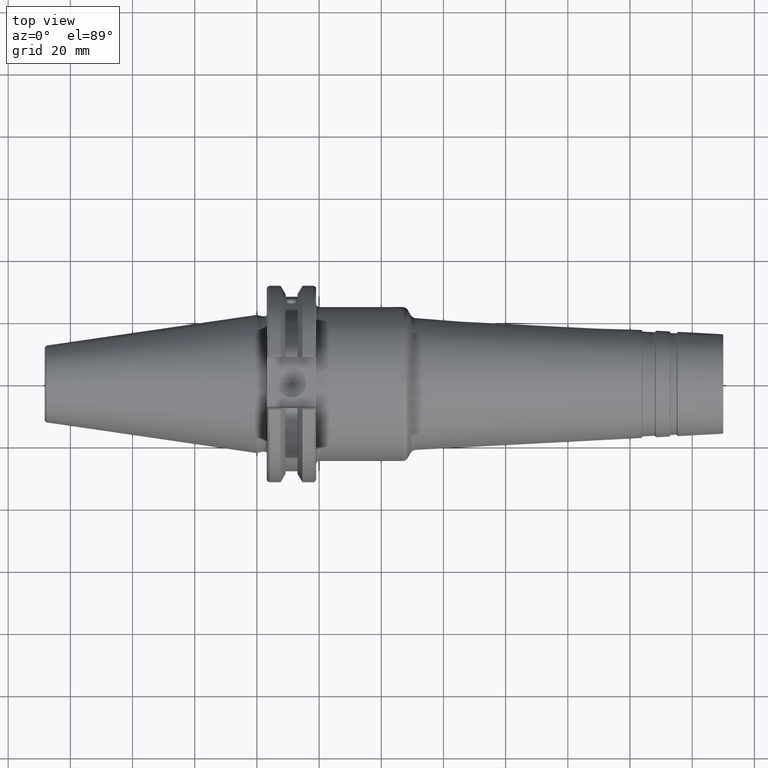
[diagram: clean part render]
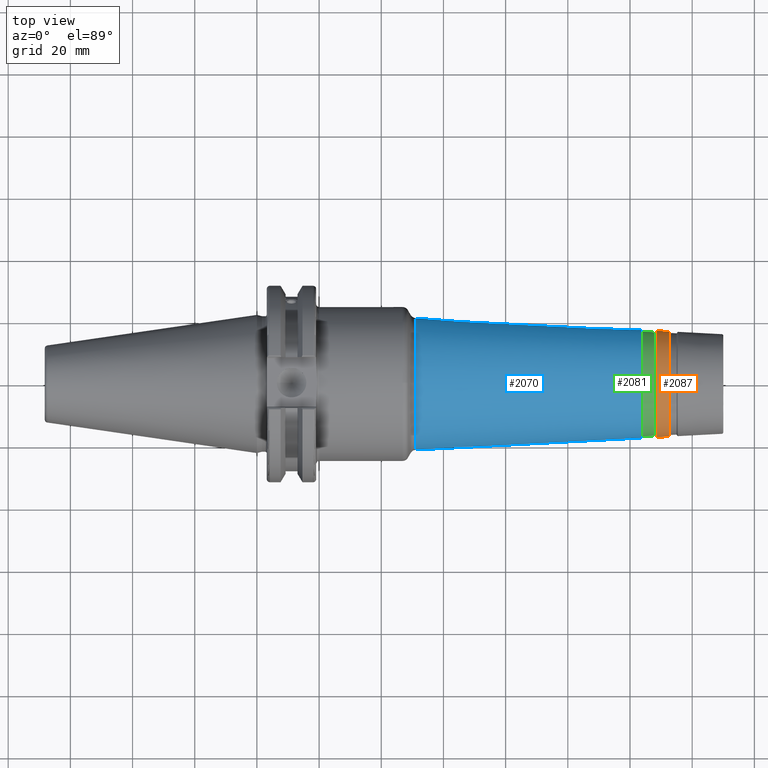
[diagram: same view with three faces highlighted in distinct colors, each labeled with its STEP entity id]
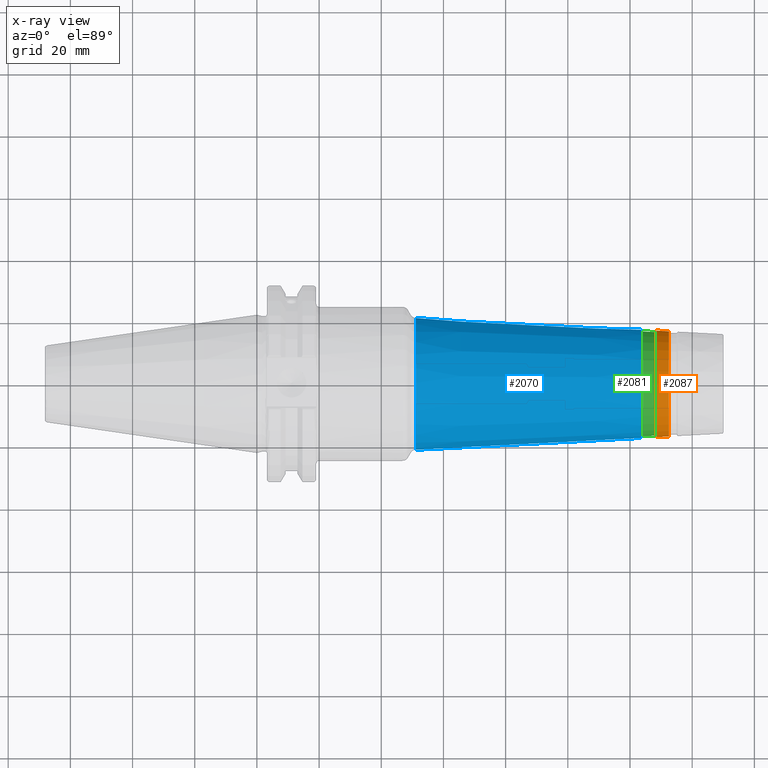
[diagram: x-ray of the same camera — body ghosted, the three highlighted faces saturated]
A machine part, top view with three faces highlighted in distinct colors.
The next image is the same camera in x-ray (body ghosted, the three faces saturated) — at least one of them is partly hidden behind the body in this view.
Their STEP definitions:

[orange] entity #2087 — the highlighted conical surface has half-angle 3 deg.
#206=FACE_OUTER_BOUND('',#315,.T.);
#315=EDGE_LOOP('',(#1541,#1542,#1543,#1544,#1545,#1546,#1547,#1548));
#424=LINE('',#3476,#523);
#523=VECTOR('',#2719,17.0202570867172);
#687=CIRCLE('',#2293,16.9166117566925);
#688=CIRCLE('',#2294,16.9166117566925);
#689=CIRCLE('',#2295,16.9166117566925);
#690=CIRCLE('',#2297,17.1239024167419);
#691=CIRCLE('',#2298,17.1239024167419);
#692=CIRCLE('',#2299,17.1239024167419);
#857=VERTEX_POINT('',#3467);
#858=VERTEX_POINT('',#3469);
#859=VERTEX_POINT('',#3471);
#860=VERTEX_POINT('',#3475);
#861=VERTEX_POINT('',#3477);
#862=VERTEX_POINT('',#3479);
#1121=EDGE_CURVE('',#857,#858,#687,.T.);
#1122=EDGE_CURVE('',#858,#859,#688,.T.);
#1123=EDGE_CURVE('',#859,#857,#689,.T.);
#1124=EDGE_CURVE('',#858,#860,#424,.T.);
#1125=EDGE_CURVE('',#861,#860,#690,.T.);
#1126=EDGE_CURVE('',#862,#861,#691,.T.);
#1127=EDGE_CURVE('',#860,#862,#692,.T.);
#1541=ORIENTED_EDGE('',*,*,#1123,.F.);
#1542=ORIENTED_EDGE('',*,*,#1122,.F.);
#1543=ORIENTED_EDGE('',*,*,#1124,.T.);
#1544=ORIENTED_EDGE('',*,*,#1125,.F.);
#1545=ORIENTED_EDGE('',*,*,#1126,.F.);
#1546=ORIENTED_EDGE('',*,*,#1127,.F.);
#1547=ORIENTED_EDGE('',*,*,#1124,.F.);
#1548=ORIENTED_EDGE('',*,*,#1121,.F.);
#2051=CONICAL_SURFACE('',#2296,17.0202570867172,0.0523598775598298);
#2087=ADVANCED_FACE('',(#206),#2051,.T.);
#2293=AXIS2_PLACEMENT_3D('',#3470,#2711,#2712);
#2294=AXIS2_PLACEMENT_3D('',#3472,#2713,#2714);
#2295=AXIS2_PLACEMENT_3D('',#3473,#2715,#2716);
#2296=AXIS2_PLACEMENT_3D('',#3474,#2717,#2718);
#2297=AXIS2_PLACEMENT_3D('',#3478,#2720,#2721);
#2298=AXIS2_PLACEMENT_3D('',#3480,#2722,#2723);
#2299=AXIS2_PLACEMENT_3D('',#3481,#2724,#2725);
#2711=DIRECTION('center_axis',(1.,0.,0.));
#2712=DIRECTION('ref_axis',(0.,-1.,3.06161699786838E-17));
#2713=DIRECTION('center_axis',(1.,0.,0.));
#2714=DIRECTION('ref_axis',(0.,-1.,3.06161699786838E-17));
#2715=DIRECTION('center_axis',(1.,0.,0.));
#2716=DIRECTION('ref_axis',(0.,-1.,3.06161699786838E-17));
#2717=DIRECTION('center_axis',(-1.,0.,0.));
#2718=DIRECTION('ref_axis',(0.,1.,0.));
#2719=DIRECTION('',(-0.998629534754574,-0.0523359562429437,-6.4093061293237E-18));
#2720=DIRECTION('center_axis',(-1.,0.,0.));
#2721=DIRECTION('ref_axis',(0.,-1.,3.06161699786838E-17));
#2722=DIRECTION('center_axis',(-1.,0.,0.));
#2723=DIRECTION('ref_axis',(0.,-1.,3.06161699786838E-17));
#2724=DIRECTION('center_axis',(-1.,0.,0.));
#2725=DIRECTION('ref_axis',(0.,-1.,3.06161699786838E-17));
#3467=CARTESIAN_POINT('',(132.510005780972,-2.07168744402519E-15,16.9166117566925));
#3469=CARTESIAN_POINT('',(132.510005780972,-16.9166117566925,-2.07168744402519E-15));
#3470=CARTESIAN_POINT('Origin',(132.510005780972,0.,-2.58960930503149E-15));
#3471=CARTESIAN_POINT('',(132.510005780972,16.9166117566925,-1.0358437220126E-15));
#3472=CARTESIAN_POINT('Origin',(132.510005780972,0.,-2.58960930503149E-15));
#3473=CARTESIAN_POINT('Origin',(132.510005780972,0.,-2.58960930503149E-15));
#3474=CARTESIAN_POINT('Origin',(130.532335071726,0.,0.));
#3475=CARTESIAN_POINT('',(128.55466436248,-17.1239024167419,-2.09707322835746E-15));
#3476=CARTESIAN_POINT('',(130.532335071726,-17.0202570867172,-2.08438033619133E-15));
#3477=CARTESIAN_POINT('',(128.55466436248,17.1239024167419,-5.24268307089365E-15));
#3478=CARTESIAN_POINT('Origin',(128.55466436248,0.,-2.62134153544682E-15));
#3479=CARTESIAN_POINT('',(128.55466436248,-2.09707322835746E-15,17.1239024167419));
#3480=CARTESIAN_POINT('Origin',(128.55466436248,0.,-2.62134153544682E-15));
#3481=CARTESIAN_POINT('Origin',(128.55466436248,0.,-2.62134153544682E-15));

[blue] entity #2070 — the highlighted conical surface has half-angle 3 deg.
#189=FACE_OUTER_BOUND('',#297,.T.);
#297=EDGE_LOOP('',(#1410,#1411,#1412,#1413,#1414,#1415,#1416,#1417));
#416=LINE('',#3343,#515);
#515=VECTOR('',#2561,19.3081634099065);
#622=CIRCLE('',#2210,21.1839457168278);
#623=CIRCLE('',#2211,21.1839457168278);
#624=CIRCLE('',#2212,21.1839457168278);
#630=CIRCLE('',#2220,17.387635362879);
#631=CIRCLE('',#2221,17.387635362879);
#632=CIRCLE('',#2222,17.387635362879);
#801=VERTEX_POINT('',#3319);
#802=VERTEX_POINT('',#3321);
#803=VERTEX_POINT('',#3323);
#808=VERTEX_POINT('',#3338);
#809=VERTEX_POINT('',#3339);
#810=VERTEX_POINT('',#3341);
#1047=EDGE_CURVE('',#801,#802,#622,.T.);
#1048=EDGE_CURVE('',#802,#803,#623,.T.);
#1049=EDGE_CURVE('',#803,#801,#624,.T.);
#1056=EDGE_CURVE('',#808,#809,#630,.T.);
#1057=EDGE_CURVE('',#810,#808,#631,.T.);
#1058=EDGE_CURVE('',#810,#803,#416,.T.);
#1059=EDGE_CURVE('',#809,#810,#632,.T.);
#1410=ORIENTED_EDGE('',*,*,#1056,.F.);
#1411=ORIENTED_EDGE('',*,*,#1057,.F.);
#1412=ORIENTED_EDGE('',*,*,#1058,.T.);
#1413=ORIENTED_EDGE('',*,*,#1048,.F.);
#1414=ORIENTED_EDGE('',*,*,#1047,.F.);
#1415=ORIENTED_EDGE('',*,*,#1049,.F.);
#1416=ORIENTED_EDGE('',*,*,#1058,.F.);
#1417=ORIENTED_EDGE('',*,*,#1059,.F.);
#2043=CONICAL_SURFACE('',#2219,19.3081634099065,0.0523598775598296);
#2070=ADVANCED_FACE('',(#189),#2043,.T.);
#2210=AXIS2_PLACEMENT_3D('',#3322,#2536,#2537);
#2211=AXIS2_PLACEMENT_3D('',#3324,#2538,#2539);
#2212=AXIS2_PLACEMENT_3D('',#3325,#2540,#2541);
#2219=AXIS2_PLACEMENT_3D('',#3337,#2555,#2556);
#2220=AXIS2_PLACEMENT_3D('',#3340,#2557,#2558);
#2221=AXIS2_PLACEMENT_3D('',#3342,#2559,#2560);
#2222=AXIS2_PLACEMENT_3D('',#3344,#2562,#2563);
#2536=DIRECTION('center_axis',(-1.,0.,0.));
#2537=DIRECTION('ref_axis',(0.,-1.,3.06161699786838E-17));
#2538=DIRECTION('center_axis',(-1.,0.,0.));
#2539=DIRECTION('ref_axis',(0.,-1.,3.06161699786838E-17));
#2540=DIRECTION('center_axis',(-1.,0.,0.));
#2541=DIRECTION('ref_axis',(0.,-1.,3.06161699786838E-17));
#2555=DIRECTION('center_axis',(-1.,0.,0.));
#2556=DIRECTION('ref_axis',(0.,1.,0.));
#2557=DIRECTION('center_axis',(1.,0.,0.));
#2558=DIRECTION('ref_axis',(0.,-1.,3.06161699786838E-17));
#2559=DIRECTION('center_axis',(1.,0.,0.));
#2560=DIRECTION('ref_axis',(0.,-1.,3.06161699786838E-17));
#2561=DIRECTION('',(-0.998629534754574,-0.0523359562429436,-6.40930612932368E-18));
#2562=DIRECTION('center_axis',(1.,0.,0.));
#2563=DIRECTION('ref_axis',(0.,-1.,3.06161699786838E-17));
#3319=CARTESIAN_POINT('',(51.0844231954446,-2.59428513154245E-15,21.1839457168278));
#3321=CARTESIAN_POINT('',(51.0844231954446,21.1839457168278,-6.48571282885612E-15));
#3322=CARTESIAN_POINT('Origin',(51.0844231954446,0.,-3.24285641442806E-15));
#3323=CARTESIAN_POINT('',(51.0844231954446,-21.1839457168278,-2.59428513154245E-15));
#3324=CARTESIAN_POINT('Origin',(51.0844231954446,0.,-3.24285641442806E-15));
#3325=CARTESIAN_POINT('Origin',(51.0844231954446,0.,-3.24285641442806E-15));
#3337=CARTESIAN_POINT('Origin',(86.8764817902327,0.,0.));
#3338=CARTESIAN_POINT('',(123.522339968181,17.387635362879,-1.06468559959455E-15));
#3339=CARTESIAN_POINT('',(123.522339968181,-2.1293711991891E-15,17.387635362879));
#3340=CARTESIAN_POINT('Origin',(123.522339968181,0.,-2.66171399898638E-15));
#3341=CARTESIAN_POINT('',(123.522339968181,-17.387635362879,-2.12937119918911E-15));
#3342=CARTESIAN_POINT('Origin',(123.522339968181,0.,-2.66171399898638E-15));
#3343=CARTESIAN_POINT('',(86.8764817902327,-19.3081634099065,-2.3645680517356E-15));
#3344=CARTESIAN_POINT('Origin',(123.522339968181,0.,-2.66171399898638E-15));

[green] entity #2081 — the highlighted conical surface has half-angle 3 deg.
#200=FACE_OUTER_BOUND('',#309,.T.);
#309=EDGE_LOOP('',(#1493,#1494,#1495,#1496,#1497,#1498,#1499,#1500));
#421=LINE('',#3434,#520);
#520=VECTOR('',#2668,16.7564541224331);
#665=CIRCLE('',#2265,16.6578254456323);
#670=CIRCLE('',#2270,16.6578254456323);
#671=CIRCLE('',#2271,16.6578254456323);
#672=CIRCLE('',#2273,16.855082799234);
#673=CIRCLE('',#2274,16.855082799234);
#674=CIRCLE('',#2275,16.855082799234);
#839=VERTEX_POINT('',#3419);
#840=VERTEX_POINT('',#3420);
#844=VERTEX_POINT('',#3429);
#845=VERTEX_POINT('',#3433);
#846=VERTEX_POINT('',#3435);
#847=VERTEX_POINT('',#3437);
#1096=EDGE_CURVE('',#839,#840,#665,.T.);
#1101=EDGE_CURVE('',#840,#844,#670,.T.);
#1102=EDGE_CURVE('',#844,#839,#671,.T.);
#1103=EDGE_CURVE('',#844,#845,#421,.T.);
#1104=EDGE_CURVE('',#846,#845,#672,.T.);
#1105=EDGE_CURVE('',#847,#846,#673,.T.);
#1106=EDGE_CURVE('',#845,#847,#674,.T.);
#1493=ORIENTED_EDGE('',*,*,#1096,.F.);
#1494=ORIENTED_EDGE('',*,*,#1102,.F.);
#1495=ORIENTED_EDGE('',*,*,#1103,.T.);
#1496=ORIENTED_EDGE('',*,*,#1104,.F.);
#1497=ORIENTED_EDGE('',*,*,#1105,.F.);
#1498=ORIENTED_EDGE('',*,*,#1106,.F.);
#1499=ORIENTED_EDGE('',*,*,#1103,.F.);
#1500=ORIENTED_EDGE('',*,*,#1101,.F.);
#2048=CONICAL_SURFACE('',#2272,16.7564541224331,0.0523598775598291);
#2081=ADVANCED_FACE('',(#200),#2048,.T.);
#2265=AXIS2_PLACEMENT_3D('',#3421,#2652,#2653);
#2270=AXIS2_PLACEMENT_3D('',#3430,#2662,#2663);
#2271=AXIS2_PLACEMENT_3D('',#3431,#2664,#2665);
#2272=AXIS2_PLACEMENT_3D('',#3432,#2666,#2667);
#2273=AXIS2_PLACEMENT_3D('',#3436,#2669,#2670);
#2274=AXIS2_PLACEMENT_3D('',#3438,#2671,#2672);
#2275=AXIS2_PLACEMENT_3D('',#3439,#2673,#2674);
#2652=DIRECTION('center_axis',(1.,0.,0.));
#2653=DIRECTION('ref_axis',(0.,-1.,3.06161699786838E-17));
#2662=DIRECTION('center_axis',(1.,0.,0.));
#2663=DIRECTION('ref_axis',(0.,-1.,3.06161699786838E-17));
#2664=DIRECTION('center_axis',(1.,0.,0.));
#2665=DIRECTION('ref_axis',(0.,-1.,3.06161699786838E-17));
#2666=DIRECTION('center_axis',(-1.,0.,0.));
#2667=DIRECTION('ref_axis',(0.,1.,0.));
#2668=DIRECTION('',(-0.998629534754574,-0.0523359562429431,-6.40930612932362E-18));
#2669=DIRECTION('center_axis',(-1.,0.,0.));
#2670=DIRECTION('ref_axis',(0.,-1.,3.06161699786838E-17));
#2671=DIRECTION('center_axis',(-1.,0.,0.));
#2672=DIRECTION('ref_axis',(0.,-1.,3.06161699786838E-17));
#2673=DIRECTION('center_axis',(-1.,0.,0.));
#2674=DIRECTION('ref_axis',(0.,-1.,3.06161699786838E-17));
#3419=CARTESIAN_POINT('',(127.894281450576,16.6578254456323,-1.01999763063745E-15));
#3420=CARTESIAN_POINT('',(127.894281450576,-2.03999526127489E-15,16.6578254456323));
#3421=CARTESIAN_POINT('Origin',(127.894281450576,0.,-2.54999407659361E-15));
#3429=CARTESIAN_POINT('',(127.894281450576,-16.6578254456323,-2.03999526127489E-15));
#3430=CARTESIAN_POINT('Origin',(127.894281450576,0.,-2.54999407659361E-15));
#3431=CARTESIAN_POINT('Origin',(127.894281450576,0.,-2.54999407659361E-15));
#3432=CARTESIAN_POINT('Origin',(126.012334187209,0.,0.));
#3433=CARTESIAN_POINT('',(124.130386923842,-16.855082799234,-2.06415231994455E-15));
#3434=CARTESIAN_POINT('',(126.012334187209,-16.7564541224331,-2.05207379060972E-15));
#3435=CARTESIAN_POINT('',(124.130386923842,16.855082799234,-5.16038079986138E-15));
#3436=CARTESIAN_POINT('Origin',(124.130386923842,0.,-2.58019039993069E-15));
#3437=CARTESIAN_POINT('',(124.130386923842,-2.06415231994455E-15,16.855082799234));
#3438=CARTESIAN_POINT('Origin',(124.130386923842,0.,-2.58019039993069E-15));
#3439=CARTESIAN_POINT('Origin',(124.130386923842,0.,-2.58019039993069E-15));